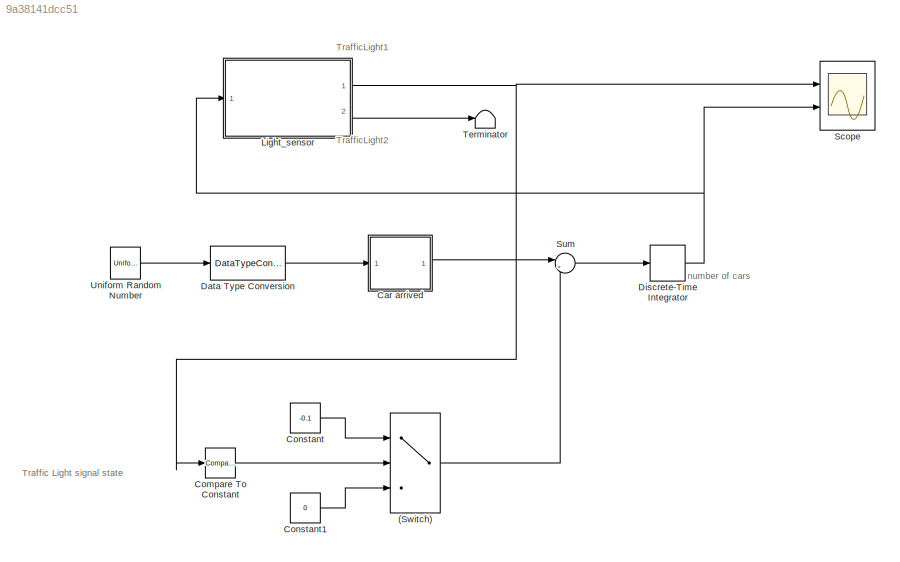
MODEL slx_9a38141dcc51
KIND model
CONFIG AbsTol = auto
CONFIG EnableMultiTasking = on
CONFIG FixedStep = 0.1
CONFIG MaxStep = auto
CONFIG MinStep = auto
CONFIG RelTol = 1e-3
CONFIG SampleTimeConstraint = Unconstrained
CONFIG SolverName = FixedStepDiscrete
CONFIG StartTime = 0.0
CONFIG StopTime = 150
BLOCK [Switch] (Switch)
  Criteria = u2 ~= 0
  InputSameDT = off
  SaturateOnIntegerOverflow = off
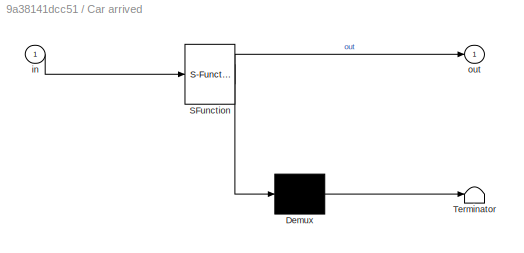
BLOCK [SubSystem] Car arrived
  ErrorFcn = Stateflow.Translate.translate
  PermitHierarchicalResolution = ExplicitOnly
  Ports = [1, 1]
  RequestExecContextInheritance = off
  SFBlockType = Chart
  TreatAsAtomicUnit = on
BLOCK [Demux] Car arrived/ Demux 
  Outputs = 1
  Ports = [1, 1]
BLOCK [S-Function] Car arrived/ SFunction 
  EnableBusSupport = on
  FunctionName = sf_sfun
  PortCounts = [1 2]
  Ports = [1, 2]
  SFcnIsStateOwnerBlock = off
  SFunctionDeploymentMode = off
  Tag = Stateflow S-Function 3
BLOCK [Terminator] Car arrived/ Terminator 
BLOCK [Inport] Car arrived/in
BLOCK [Outport] Car arrived/out
BLOCK [Reference] Compare To Constant  REF=simulink/Logic and Bit
Operations/Compare
To Constant
  Ports = [1, 1]
  SourceBlock = simulink/Logic and Bit\nOperations/Compare\nTo Constant
  SourceProductBaseCode = SL
  SourceType = Compare To Constant
BLOCK [Constant] Constant
  Value = -0.1
BLOCK [Constant] Constant1
  Value = 0
BLOCK [DataTypeConversion] Data Type Conversion
  RndMeth = Floor
  SaturateOnIntegerOverflow = off
BLOCK [DiscreteIntegrator] Discrete-Time Integrator
  ICPrevOutput = DiscIntNeverNeededParam
  ICPrevScaledInput = DiscIntNeverNeededParam
  LimitOutput = on
  LowerSaturationLimit = 0
  Ports = [1, 1]
  SampleTime = -1
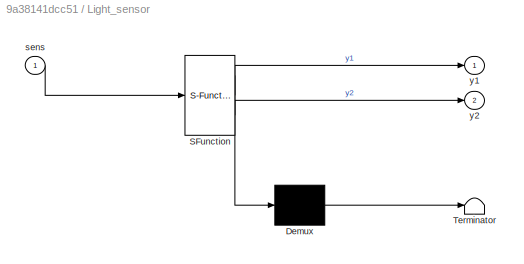
BLOCK [SubSystem] Light_sensor
  ErrorFcn = Stateflow.Translate.translate
  PermitHierarchicalResolution = ExplicitOnly
  Ports = [1, 2]
  RequestExecContextInheritance = off
  SFBlockType = Chart
  TreatAsAtomicUnit = on
BLOCK [Demux] Light_sensor/ Demux 
  Outputs = 1
  Ports = [1, 1]
BLOCK [S-Function] Light_sensor/ SFunction 
  EnableBusSupport = on
  FunctionName = sf_sfun
  PortCounts = [1 3]
  Ports = [1, 3]
  SFcnIsStateOwnerBlock = off
  SFunctionDeploymentMode = off
  Tag = Stateflow S-Function 1
BLOCK [Terminator] Light_sensor/ Terminator 
BLOCK [Inport] Light_sensor/sens
BLOCK [Outport] Light_sensor/y1
BLOCK [Outport] Light_sensor/y2
  Port = 2
BLOCK [Scope] Scope
  Floating = off
  NumInputPorts = 2
  Ports = [2]
  ScopeSpecificationString = Simulink.scopes.TimeScopeBlockCfg('CurrentConfiguration', extmgr.ConfigurationSet(extmgr.Configuration('Core','General UI',true),extmgr.Configuration('Core','Source UI',true),extmgr.Configuration('Sources','WiredSimulink',true),extmgr.Configuration('Visuals','Time Domain',true,'SerializedDisplays',{struct('MinYLimReal','0.75','MaxYLimReal','3.25','YLabelReal','','MinYLimMag','0.75','MaxYLimMag','3...<+2117ch>
BLOCK [Sum] Sum
  Inputs = |++
  Ports = [2, 1]
BLOCK [Terminator] Terminator
BLOCK [UniformRandomNumber] Uniform Random Number
  Maximum = 100
  Minimum = 0
  SampleTime = 0
  Seed = 177836
ANNOTATION (root): Traffic Light signal state
ANNOTATION (root): TrafficLight1
ANNOTATION (root): TrafficLight2
ANNOTATION (root): number of cars
LINE (Switch):1 -> Sum:2
LINE Car arrived:1 -> Sum:1
LINE Compare To Constant:1 -> (Switch):2
LINE Constant1:1 -> (Switch):3
LINE Constant:1 -> (Switch):1
LINE Data Type Conversion:1 -> Car arrived:1
NET Discrete-Time Integrator:1 -> Light_sensor:1, Scope:2
NET Light_sensor:1 -> Compare To Constant:1, Scope:1
LINE Light_sensor:2 -> Terminator:1
LINE Sum:1 -> Discrete-Time Integrator:1
LINE Uniform Random Number:1 -> Data Type Conversion:1
note: NET lines group one-source signal fan-out (src -> all destinations, sorted); 1:1 wires keep LINE
CHART Light_sensor states=5 transitions=6
  STATE_LABEL 'Stop\ny1=RED;\ny2=GREEN;'
  STATE_LABEL 'Stop_for_Traffic\ny1=RED;\ny2=GREEN;'
  STATE_LABEL 'Stop_to_Go\ny1=RED;\ny2=YELLOW;'
  STATE_LABEL 'Go_to_Stop\ny1=YELLOW\ny2=RED;'
  STATE_LABEL 'Go\ny1=GREEN;\ny2=RED;'
CHART Car arrived states=0 transitions=1
CHART  states=0 transitions=0
CHART  states=0 transitions=0
